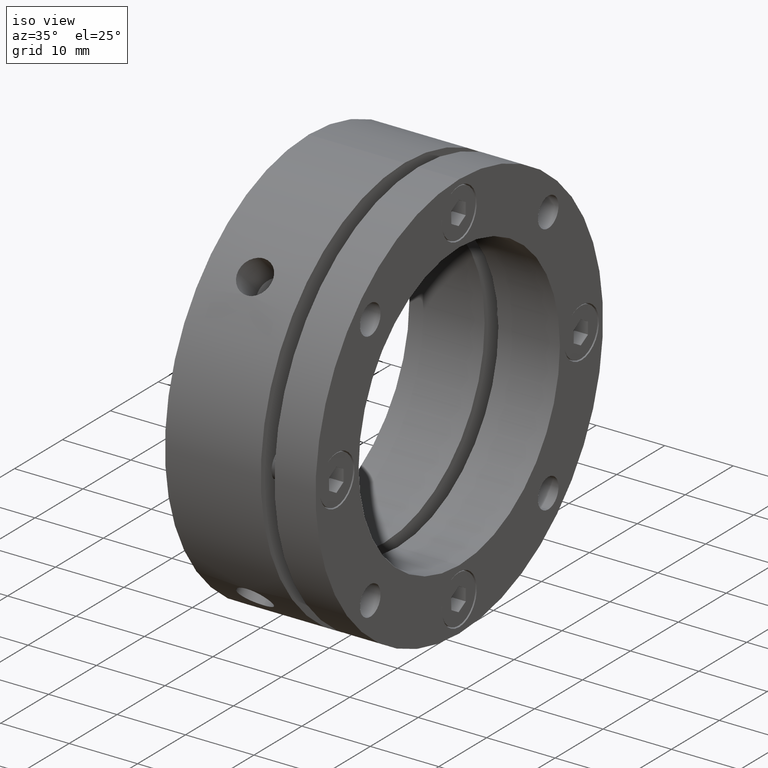
[diagram: clean part render]
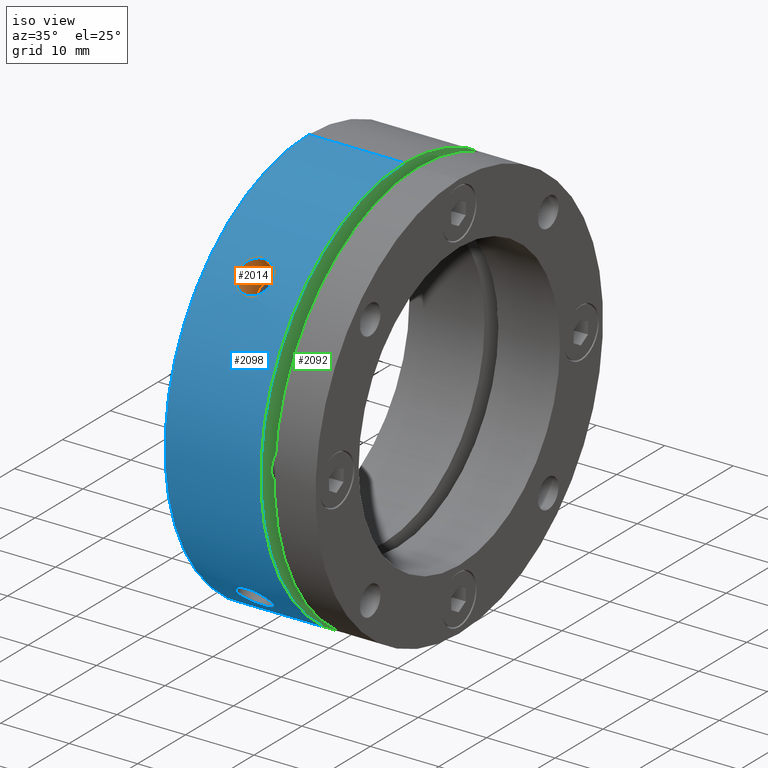
[diagram: same view with three faces highlighted in distinct colors, each labeled with its STEP entity id]
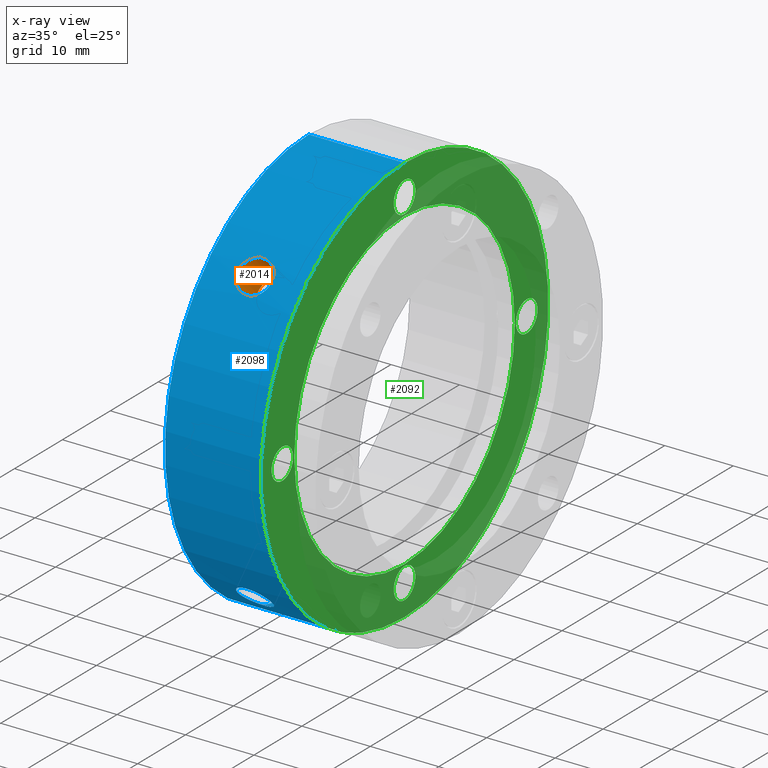
[diagram: x-ray of the same camera — body ghosted, the three highlighted faces saturated]
A machine part, iso view with three faces highlighted in distinct colors.
The next image is the same camera in x-ray (body ghosted, the three faces saturated) — at least one of them is partly hidden behind the body in this view.
Their STEP definitions:

[orange] entity #2014 — the highlighted cylindrical surface (edge-blend (fillet) strip) has radius 2.5 mm, axis along (0, -0.7071, 0.7071).
#169 = ORIENTED_EDGE ( 'NONE', *, *, #1914, .F. ) ;
#170 = ORIENTED_EDGE ( 'NONE', *, *, #1909, .F. ) ;
#171 = ORIENTED_EDGE ( 'NONE', *, *, #1887, .T. ) ;
#172 = ORIENTED_EDGE ( 'NONE', *, *, #1912, .F. ) ;
#254 = VECTOR ( 'NONE', #2864, 1000.000000000000000 ) ;
#274 = LINE ( 'NONE', #2858, #254 ) ;
#317 = AXIS2_PLACEMENT_3D ( 'NONE', #3215, #3213, #3212 ) ;
#333 = CYLINDRICAL_SURFACE ( 'NONE', #317, 2.499999999999998700 ) ;
#336 = FACE_OUTER_BOUND ( 'NONE', #1158, .T. ) ;
#1158 = EDGE_LOOP ( 'NONE', ( #172, #171, #170, #169 ) ) ;
#1358 = B_SPLINE_CURVE_WITH_KNOTS ( 'NONE', 3,
 ( #2948, #2944, #2950, #2951, #2952, #2953, #2954, #2955, #2956, #2957, #2958, #2959, #2960, #2961, #2962, #2963, #2964, #2965, #2966, #2967, #2968, #2969, #2970, #2971, #2972, #2973, #2974, #2975, #2976, #2977, #2978, #2979, #2980, #2981 ),
 .UNSPECIFIED., .F., .F.,
 ( 4, 2, 2, 2, 2, 2, 2, 2, 2, 2, 2, 2, 2, 2, 2, 2, 4 ),
 ( 0.01172850630660228500, 0.01221712147181779800, 0.01270573663703331200, 0.01319435180224882600, 0.01368296696746433900, 0.01417158213267985200, 0.01466019729789536600, 0.01514881246311088100, 0.01563742762832639300, 0.01612604279354190600, 0.01661465795875741900, 0.01710327312397293500, 0.01759188828918844700, 0.01808050345440396000, 0.01856911861961947600, 0.01905773378483498900, 0.01954634895005050200 ),
 .UNSPECIFIED. ) ;
#1381 = VERTEX_POINT ( 'NONE', #2714 ) ;
#1384 = VERTEX_POINT ( 'NONE', #2720 ) ;
#1435 = VERTEX_POINT ( 'NONE', #2728 ) ;
#1498 = VERTEX_POINT ( 'NONE', #2725 ) ;
#1887 = EDGE_CURVE ( 'NONE', #1498, #1381, #274, .T. ) ;
#1909 = EDGE_CURVE ( 'NONE', #1384, #1381, #1358, .T. ) ;
#1912 = EDGE_CURVE ( 'NONE', #1498, #1435, #3553, .T. ) ;
#1914 = EDGE_CURVE ( 'NONE', #1435, #1384, #3532, .T. ) ;
#2014 = ADVANCED_FACE ( 'NONE', ( #336 ), #333, .F. ) ;
#2714 = CARTESIAN_POINT ( 'NONE',  ( 6.999999999999992900, -19.37165120364333500, 22.90718510957606900 ) ) ;
#2720 = CARTESIAN_POINT ( 'NONE',  ( 6.999999999999992900, -22.90718510957606900, 19.37165120364333100 ) ) ;
#2725 = CARTESIAN_POINT ( 'NONE',  ( 6.999999999999992900, -15.20279579787412600, 18.73832969908015400 ) ) ;
#2728 = CARTESIAN_POINT ( 'NONE',  ( 6.999999999999992900, -18.73832969908015800, 15.20279579787412800 ) ) ;
#2858 = CARTESIAN_POINT ( 'NONE',  ( 6.999999999999992900, -17.32411613907041600, 20.85965004500314600 ) ) ;
#2864 = DIRECTION ( 'NONE',  ( 0.0000000000000000000, -0.7071067811865470200, 0.7071067811865480200 ) ) ;
#2944 = CARTESIAN_POINT ( 'NONE',  ( 6.836894700547596800, -22.90718510957606900, 19.37165120364333500 ) ) ;
#2948 = CARTESIAN_POINT ( 'NONE',  ( 6.999999999999992900, -22.90718510957606900, 19.37165120364333100 ) ) ;
#2950 = CARTESIAN_POINT ( 'NONE',  ( 6.671221257707829400, -22.89661360415437500, 19.38417176302243300 ) ) ;
#2951 = CARTESIAN_POINT ( 'NONE',  ( 6.350617425688484200, -22.85509794150021200, 19.43310390958521000 ) ) ;
#2952 = CARTESIAN_POINT ( 'NONE',  ( 6.194783716693788900, -22.82438068432816500, 19.46924749727402900 ) ) ;
#2953 = CARTESIAN_POINT ( 'NONE',  ( 5.892100343668774400, -22.74258783071788100, 19.56472975778931600 ) ) ;
#2954 = CARTESIAN_POINT ( 'NONE',  ( 5.745846001376010600, -22.69135547735402300, 19.62423545354951300 ) ) ;
#2955 = CARTESIAN_POINT ( 'NONE',  ( 5.475114872303451300, -22.57225115279433000, 19.76111607250889800 ) ) ;
#2956 = CARTESIAN_POINT ( 'NONE',  ( 5.348905772578898900, -22.50397472037905200, 19.83897140071788500 ) ) ;
#2957 = CARTESIAN_POINT ( 'NONE',  ( 5.115526374395370700, -22.34868855734542600, 20.01373988590686200 ) ) ;
#2958 = CARTESIAN_POINT ( 'NONE',  ( 5.012130362257663800, -22.26416831458684000, 20.10783844428337000 ) ) ;
#2959 = CARTESIAN_POINT ( 'NONE',  ( 4.831169746185584500, -22.08163587195340600, 20.30811943189505800 ) ) ;
#2960 = CARTESIAN_POINT ( 'NONE',  ( 4.752918425768972300, -21.98241886911594600, 20.41558739538757900 ) ) ;
#2961 = CARTESIAN_POINT ( 'NONE',  ( 4.627517836316944700, -21.77512464431892900, 20.63654270366883700 ) ) ;
#2962 = CARTESIAN_POINT ( 'NONE',  ( 4.580260200849642700, -21.66763970699688700, 20.74943530156133800 ) ) ;
#2963 = CARTESIAN_POINT ( 'NONE',  ( 4.516342189234553200, -21.44475500621785700, 20.97970825653213100 ) ) ;
#2964 = CARTESIAN_POINT ( 'NONE',  ( 4.499883834946282400, -21.32877622223017900, 21.09764433914214300 ) ) ;
#2965 = CARTESIAN_POINT ( 'NONE',  ( 4.500117414499269100, -21.09513112999237800, 21.33126190377245400 ) ) ;
#2966 = CARTESIAN_POINT ( 'NONE',  ( 4.516446248430277400, -20.97930605625763400, 21.44514514449110700 ) ) ;
#2967 = CARTESIAN_POINT ( 'NONE',  ( 4.580201500392894900, -20.74967411051719800, 21.66740771707014100 ) ) ;
#2968 = CARTESIAN_POINT ( 'NONE',  ( 4.628409080404230400, -20.63464658679869100, 21.77692064744342900 ) ) ;
#2969 = CARTESIAN_POINT ( 'NONE',  ( 4.754095537332377200, -20.41384449055703200, 21.98403661210755500 ) ) ;
#2970 = CARTESIAN_POINT ( 'NONE',  ( 4.830971930617552700, -20.30832116564056000, 22.08145305637847100 ) ) ;
#2971 = CARTESIAN_POINT ( 'NONE',  ( 5.012555105402102900, -20.10738557641113300, 22.26458000792703000 ) ) ;
#2972 = CARTESIAN_POINT ( 'NONE',  ( 5.118171207639497000, -20.01163789383247100, 22.35056281768358100 ) ) ;
#2973 = CARTESIAN_POINT ( 'NONE',  ( 5.348833923572706300, -19.83914795000356100, 22.50381119008424900 ) ) ;
#2974 = CARTESIAN_POINT ( 'NONE',  ( 5.474697529445538900, -19.76126421475497400, 22.57212466538898000 ) ) ;
#2975 = CARTESIAN_POINT ( 'NONE',  ( 5.748053014275139800, -19.62318287399133600, 22.69226892950791500 ) ) ;
#2976 = CARTESIAN_POINT ( 'NONE',  ( 5.893468293072757500, -19.56427291519543800, 22.74297967647199700 ) ) ;
#2977 = CARTESIAN_POINT ( 'NONE',  ( 6.194297869247016300, -19.46942615285583500, 22.82422714010622000 ) ) ;
#2978 = CARTESIAN_POINT ( 'NONE',  ( 6.351938250832660100, -19.43277923286016000, 22.85537406943897700 ) ) ;
#2979 = CARTESIAN_POINT ( 'NONE',  ( 6.674652181047235000, -19.38377303029575300, 22.89695123104916200 ) ) ;
#2980 = CARTESIAN_POINT ( 'NONE',  ( 6.836894461924723400, -19.37165120364333100, 22.90718510957607300 ) ) ;
#2981 = CARTESIAN_POINT ( 'NONE',  ( 6.999999999999992900, -19.37165120364333500, 22.90718510957606900 ) ) ;
#2990 = CARTESIAN_POINT ( 'NONE',  ( 6.999999999999992900, -16.97056274847714300, 16.97056274847713900 ) ) ;
#2991 = DIRECTION ( 'NONE',  ( 0.0000000000000000000, -0.7071067811865470200, 0.7071067811865480200 ) ) ;
#2992 = DIRECTION ( 'NONE',  ( 0.0000000000000000000, -0.7071067811865477900, -0.7071067811865471300 ) ) ;
#2993 = CARTESIAN_POINT ( 'NONE',  ( 6.999999999999992900, -20.85965004500315300, 17.32411613907041600 ) ) ;
#2995 = DIRECTION ( 'NONE',  ( 0.0000000000000000000, -0.7071067811865470200, 0.7071067811865480200 ) ) ;
#3212 = DIRECTION ( 'NONE',  ( 0.0000000000000000000, -0.7071067811865482400, -0.7071067811865468000 ) ) ;
#3213 = DIRECTION ( 'NONE',  ( 0.0000000000000000000, -0.7071067811865470200, 0.7071067811865480200 ) ) ;
#3215 = CARTESIAN_POINT ( 'NONE',  ( 6.999999999999992900, -19.09188309203678500, 19.09188309203678100 ) ) ;
#3416 = AXIS2_PLACEMENT_3D ( 'NONE', #2990, #2991, #2992 ) ;
#3529 = VECTOR ( 'NONE', #2995, 1000.000000000000000 ) ;
#3532 = LINE ( 'NONE', #2993, #3529 ) ;
#3553 = CIRCLE ( 'NONE', #3416, 2.500000000000000000 ) ;

[blue] entity #2098 — the highlighted cylindrical surface (partial cylindrical patch) has radius 30 mm, axis along (1, 0, 0).
#437 = DIRECTION ( 'NONE',  ( 0.0000000000000000000, 0.0000000000000000000, -1.000000000000000000 ) ) ;
#438 = CARTESIAN_POINT ( 'NONE',  ( 10.99999999999999300, 0.0000000000000000000, 0.0000000000000000000 ) ) ;
#439 = DIRECTION ( 'NONE',  ( 1.000000000000000000, 0.0000000000000000000, 0.0000000000000000000 ) ) ;
#530 = CARTESIAN_POINT ( 'NONE',  ( 6.999999999999992900, -19.37165120364333500, 22.90718510957606900 ) ) ;
#534 = CARTESIAN_POINT ( 'NONE',  ( 6.999999999999992900, -22.90718510957607300, -19.37165120364333100 ) ) ;
#535 = CARTESIAN_POINT ( 'NONE',  ( 7.163105538181801200, -22.90718510957607300, -19.37165120364333900 ) ) ;
#536 = CARTESIAN_POINT ( 'NONE',  ( 14.00000000000000000, 0.0000000000000000000, 0.0000000000000000000 ) ) ;
#537 = DIRECTION ( 'NONE',  ( -1.000000000000000000, -0.0000000000000000000, -0.0000000000000000000 ) ) ;
#538 = DIRECTION ( 'NONE',  ( 0.0000000000000000000, 0.0000000000000000000, -1.000000000000000000 ) ) ;
#539 = CARTESIAN_POINT ( 'NONE',  ( 7.163105538181801200, -19.37165120364333500, 22.90718510957607300 ) ) ;
#540 = CARTESIAN_POINT ( 'NONE',  ( 7.328779224750092200, -22.89661357285001500, -19.38417180015198200 ) ) ;
#541 = CARTESIAN_POINT ( 'NONE',  ( 7.649383499610916500, -22.85509779051097100, -19.43310408731471700 ) ) ;
#542 = CARTESIAN_POINT ( 'NONE',  ( 7.805217417415984300, -22.82438044525099500, -19.46924777814290800 ) ) ;
#543 = CARTESIAN_POINT ( 'NONE',  ( 8.107901180360109100, -22.74258735149684100, -19.56473031543789500 ) ) ;
#544 = CARTESIAN_POINT ( 'NONE',  ( 8.254155664859011300, -22.69135485746315700, -19.62423617146452400 ) ) ;
#545 = CARTESIAN_POINT ( 'NONE',  ( 8.524887027766089500, -22.57225020373851600, -19.76111715770542400 ) ) ;
#546 = CARTESIAN_POINT ( 'NONE',  ( 8.651096218718093300, -22.50397358111146000, -19.83897269496314300 ) ) ;
#547 = CARTESIAN_POINT ( 'NONE',  ( 8.884475733340572400, -22.34868696919205500, -20.01374166126667800 ) ) ;
#548 = CARTESIAN_POINT ( 'NONE',  ( 8.987871681798553800, -22.26416654470176200, -20.10784040620759000 ) ) ;
#549 = CARTESIAN_POINT ( 'NONE',  ( 9.168832182704775800, -22.08163363437640200, -20.30812186709813000 ) ) ;
#550 = CARTESIAN_POINT ( 'NONE',  ( 9.247083408198186300, -21.98241635808737400, -20.41559010135178900 ) ) ;
#551 = CARTESIAN_POINT ( 'NONE',  ( 9.372483633479699700, -21.77512169402642100, -20.63654581893636900 ) ) ;
#552 = CARTESIAN_POINT ( 'NONE',  ( 9.419741051201853600, -21.66763652644372900, -20.74943862536838800 ) ) ;
#553 = CARTESIAN_POINT ( 'NONE',  ( 9.483658523332563200, -21.44475133602965000, -20.97971201055587900 ) ) ;
#554 = CARTESIAN_POINT ( 'NONE',  ( 9.500116543866353100, -21.32877192758936100, -21.09764867842641700 ) ) ;
#555 = CARTESIAN_POINT ( 'NONE',  ( 9.499882198476855800, -21.09512722456828400, -21.33126576358537800 ) ) ;
#556 = CARTESIAN_POINT ( 'NONE',  ( 9.483553047503853900, -20.97930234141864900, -21.44514877648675400 ) ) ;
#557 = CARTESIAN_POINT ( 'NONE',  ( 9.419797245789293800, -20.74967077353989400, -21.66741091058202800 ) ) ;
#558 = CARTESIAN_POINT ( 'NONE',  ( 9.371589422166462000, -20.63464343284202600, -21.77692363346963200 ) ) ;
#559 = CARTESIAN_POINT ( 'NONE',  ( 9.245902651748204800, -20.41384183252238300, -21.98403907782320500 ) ) ;
#560 = CARTESIAN_POINT ( 'NONE',  ( 9.169026150545470000, -20.30831874024471200, -22.08145528509409400 ) ) ;
#561 = CARTESIAN_POINT ( 'NONE',  ( 8.987442830375432100, -20.10738359425552700, -22.26458179612740600 ) ) ;
#562 = CARTESIAN_POINT ( 'NONE',  ( 8.881826724277937400, -20.01163615549786800, -22.35056437251759900 ) ) ;
#563 = CARTESIAN_POINT ( 'NONE',  ( 8.651164096809886000, -19.83914666146511500, -22.50381232446982300 ) ) ;
#564 = CARTESIAN_POINT ( 'NONE',  ( 8.525300567668345800, -19.76126312680644400, -22.57212561688089300 ) ) ;
#565 = CARTESIAN_POINT ( 'NONE',  ( 8.251945290952889400, -19.62318214463960000, -22.69226955924480300 ) ) ;
#566 = CARTESIAN_POINT ( 'NONE',  ( 8.106530202867167700, -19.56427236512423600, -22.74298014917462400 ) ) ;
#567 = CARTESIAN_POINT ( 'NONE',  ( 7.805700995315485000, -19.46942587073627400, -22.82422738027336000 ) ) ;
#568 = CARTESIAN_POINT ( 'NONE',  ( 7.648060807944369300, -19.43277905299464700, -22.85537422223598400 ) ) ;
#569 = CARTESIAN_POINT ( 'NONE',  ( 7.325347344419744100, -19.38377299516970400, -22.89695126065229000 ) ) ;
#570 = CARTESIAN_POINT ( 'NONE',  ( 7.163105299558921500, -19.37165120364333100, -22.90718510957607300 ) ) ;
#571 = CARTESIAN_POINT ( 'NONE',  ( 6.999999999999992900, -19.37165120364333500, -22.90718510957606900 ) ) ;
#572 = CARTESIAN_POINT ( 'NONE',  ( 7.328779224750089600, -19.38417180015198600, 22.89661357285002200 ) ) ;
#573 = CARTESIAN_POINT ( 'NONE',  ( 7.649383499610918200, -19.43310408731472100, 22.85509779051097100 ) ) ;
#574 = CARTESIAN_POINT ( 'NONE',  ( 7.805217417415984300, -19.46924777814291100, 22.82438044525099500 ) ) ;
#575 = CARTESIAN_POINT ( 'NONE',  ( 8.107901180360109100, -19.56473031543789900, 22.74258735149684100 ) ) ;
#576 = CARTESIAN_POINT ( 'NONE',  ( 8.254155664859011300, -19.62423617146452800, 22.69135485746315700 ) ) ;
#577 = CARTESIAN_POINT ( 'NONE',  ( 8.524887027766089500, -19.76111715770542800, 22.57225020373851300 ) ) ;
#578 = CARTESIAN_POINT ( 'NONE',  ( 8.651096218718100400, -19.83897269496314700, 22.50397358111145300 ) ) ;
#579 = CARTESIAN_POINT ( 'NONE',  ( 8.884475733340575900, -20.01374166126668500, 22.34868696919204500 ) ) ;
#580 = CARTESIAN_POINT ( 'NONE',  ( 8.987871681798557300, -20.10784040620759000, 22.26416654470176600 ) ) ;
#581 = CARTESIAN_POINT ( 'NONE',  ( 9.168832182704781200, -20.30812186709813400, 22.08163363437639100 ) ) ;
#582 = CARTESIAN_POINT ( 'NONE',  ( 9.247083408198188100, -20.41559010135179600, 21.98241635808736300 ) ) ;
#583 = CARTESIAN_POINT ( 'NONE',  ( 9.372483633479701500, -20.63654581893636900, 21.77512169402642100 ) ) ;
#584 = CARTESIAN_POINT ( 'NONE',  ( 9.419741051201855300, -20.74943862536839100, 21.66763652644371900 ) ) ;
#585 = CARTESIAN_POINT ( 'NONE',  ( 9.483658523332559700, -20.97971201055587900, 21.44475133602964300 ) ) ;
#586 = CARTESIAN_POINT ( 'NONE',  ( 9.500116543866353100, -21.09764867842642400, 21.32877192758935400 ) ) ;
#587 = CARTESIAN_POINT ( 'NONE',  ( 9.499882198476855800, -21.33126576358539200, 21.09512722456827300 ) ) ;
#588 = CARTESIAN_POINT ( 'NONE',  ( 9.483553047503852100, -21.44514877648675700, 20.97930234141863800 ) ) ;
#589 = CARTESIAN_POINT ( 'NONE',  ( 9.419797245789292000, -21.66741091058203100, 20.74967077353988600 ) ) ;
#590 = CARTESIAN_POINT ( 'NONE',  ( 9.371589422166460200, -21.77692363346963600, 20.63464343284201500 ) ) ;
#591 = CARTESIAN_POINT ( 'NONE',  ( 9.245902651748203000, -21.98403907782321600, 20.41384183252237600 ) ) ;
#592 = CARTESIAN_POINT ( 'NONE',  ( 9.169026150545471800, -22.08145528509410100, 20.30831874024470500 ) ) ;
#593 = CARTESIAN_POINT ( 'NONE',  ( 8.987442830375428600, -22.26458179612742000, 20.10738359425552700 ) ) ;
#594 = CARTESIAN_POINT ( 'NONE',  ( 8.881826724277932100, -22.35056437251760300, 20.01163615549786100 ) ) ;
#595 = CARTESIAN_POINT ( 'NONE',  ( 8.651164096809886000, -22.50381232446983000, 19.83914666146510800 ) ) ;
#596 = CARTESIAN_POINT ( 'NONE',  ( 8.525300567668344000, -22.57212561688089600, 19.76126312680644800 ) ) ;
#597 = CARTESIAN_POINT ( 'NONE',  ( 8.251945290952884100, -22.69226955924480600, 19.62318214463960000 ) ) ;
#598 = CARTESIAN_POINT ( 'NONE',  ( 8.106530202867166000, -22.74298014917462000, 19.56427236512423600 ) ) ;
#599 = CARTESIAN_POINT ( 'NONE',  ( 7.805700995315480600, -22.82422738027336400, 19.46942587073627000 ) ) ;
#600 = CARTESIAN_POINT ( 'NONE',  ( 7.648060807944367500, -22.85537422223598400, 19.43277905299464300 ) ) ;
#601 = CARTESIAN_POINT ( 'NONE',  ( 7.325347344419744100, -22.89695126065229000, 19.38377299516969600 ) ) ;
#602 = CARTESIAN_POINT ( 'NONE',  ( 7.163105299558921500, -22.90718510957607300, 19.37165120364333500 ) ) ;
#603 = CARTESIAN_POINT ( 'NONE',  ( 6.999999999999992900, -22.90718510957606900, 19.37165120364333100 ) ) ;
#607 = CARTESIAN_POINT ( 'NONE',  ( -8.673617379884035500E-015, 0.0000000000000000000, 0.0000000000000000000 ) ) ;
#608 = DIRECTION ( 'NONE',  ( 1.000000000000000000, 0.0000000000000000000, 0.0000000000000000000 ) ) ;
#609 = DIRECTION ( 'NONE',  ( 0.0000000000000000000, 0.0000000000000000000, -1.000000000000000000 ) ) ;
#1160 = VERTEX_POINT ( 'NONE', #2553 ) ;
#1311 = AXIS2_PLACEMENT_3D ( 'NONE', #438, #439, #437 ) ;
#1357 = B_SPLINE_CURVE_WITH_KNOTS ( 'NONE', 3,
 ( #530, #539, #572, #573, #574, #575, #576, #577, #578, #579, #580, #581, #582, #583, #584, #585, #586, #587, #588, #589, #590, #591, #592, #593, #594, #595, #596, #597, #598, #599, #600, #601, #602, #603 ),
 .UNSPECIFIED., .F., .F.,
 ( 4, 2, 2, 2, 2, 2, 2, 2, 2, 2, 2, 2, 2, 2, 2, 2, 4 ),
 ( 0.003910663658047631100, 0.004399278823582297400, 0.004887893989116963600, 0.005376509154651629800, 0.005865124320186295200, 0.006353739485720962300, 0.006842354651255627700, 0.007330969816790293900, 0.007819584982324960200, 0.008308200147859625500, 0.008796815313394292700, 0.009285430478928959800, 0.009774045644463623400, 0.01026266080999829100, 0.01075127597553295800, 0.01123989114106762100, 0.01172850630660228500 ),
 .UNSPECIFIED. ) ;
#1358 = B_SPLINE_CURVE_WITH_KNOTS ( 'NONE', 3,
 ( #2948, #2944, #2950, #2951, #2952, #2953, #2954, #2955, #2956, #2957, #2958, #2959, #2960, #2961, #2962, #2963, #2964, #2965, #2966, #2967, #2968, #2969, #2970, #2971, #2972, #2973, #2974, #2975, #2976, #2977, #2978, #2979, #2980, #2981 ),
 .UNSPECIFIED., .F., .F.,
 ( 4, 2, 2, 2, 2, 2, 2, 2, 2, 2, 2, 2, 2, 2, 2, 2, 4 ),
 ( 0.01172850630660228500, 0.01221712147181779800, 0.01270573663703331200, 0.01319435180224882600, 0.01368296696746433900, 0.01417158213267985200, 0.01466019729789536600, 0.01514881246311088100, 0.01563742762832639300, 0.01612604279354190600, 0.01661465795875741900, 0.01710327312397293500, 0.01759188828918844700, 0.01808050345440396000, 0.01856911861961947600, 0.01905773378483498900, 0.01954634895005050200 ),
 .UNSPECIFIED. ) ;
#1363 = B_SPLINE_CURVE_WITH_KNOTS ( 'NONE', 3,
 ( #2884, #2885, #2890, #2891, #2892, #2893, #2894, #2895, #2896, #2897, #2898, #2899, #2900, #2901, #2902, #2903, #2904, #2905, #2906, #2907, #2908, #2909, #2910, #2911, #2912, #2913, #2914, #2915, #2916, #2917, #2918, #2919, #2920, #2921 ),
 .UNSPECIFIED., .F., .F.,
 ( 4, 2, 2, 2, 2, 2, 2, 2, 2, 2, 2, 2, 2, 2, 2, 2, 4 ),
 ( 0.01172850630660226600, 0.01221712147181777800, 0.01270573663703329100, 0.01319435180224880400, 0.01368296696746431700, 0.01417158213267982900, 0.01466019729789534000, 0.01514881246311085300, 0.01563742762832636600, 0.01612604279354187800, 0.01661465795875739100, 0.01710327312397290400, 0.01759188828918841600, 0.01808050345440392900, 0.01856911861961944200, 0.01905773378483495400, 0.01954634895005046700 ),
 .UNSPECIFIED. ) ;
#1364 = B_SPLINE_CURVE_WITH_KNOTS ( 'NONE', 3,
 ( #534, #535, #540, #541, #542, #543, #544, #545, #546, #547, #548, #549, #550, #551, #552, #553, #554, #555, #556, #557, #558, #559, #560, #561, #562, #563, #564, #565, #566, #567, #568, #569, #570, #571 ),
 .UNSPECIFIED., .F., .F.,
 ( 4, 2, 2, 2, 2, 2, 2, 2, 2, 2, 2, 2, 2, 2, 2, 2, 4 ),
 ( 0.003910663658047629400, 0.004399278823582294800, 0.004887893989116959300, 0.005376509154651624600, 0.005865124320186290000, 0.006353739485720955400, 0.006842354651255619000, 0.007330969816790284400, 0.007819584982324949800, 0.008308200147859615100, 0.008796815313394280500, 0.009285430478928945900, 0.009774045644463609500, 0.01026266080999827500, 0.01075127597553294000, 0.01123989114106760400, 0.01172850630660226400 ),
 .UNSPECIFIED. ) ;
#1365 = VERTEX_POINT ( 'NONE', #2716 ) ;
#1381 = VERTEX_POINT ( 'NONE', #2714 ) ;
#1384 = VERTEX_POINT ( 'NONE', #2720 ) ;
#1406 = VERTEX_POINT ( 'NONE', #2727 ) ;
#1411 = VERTEX_POINT ( 'NONE', #2718 ) ;
#1456 = VERTEX_POINT ( 'NONE', #2735 ) ;
#1460 = VERTEX_POINT ( 'NONE', #2734 ) ;
#1526 = ORIENTED_EDGE ( 'NONE', *, *, #1893, .T. ) ;
#1529 = ORIENTED_EDGE ( 'NONE', *, *, #2590, .T. ) ;
#1530 = ORIENTED_EDGE ( 'NONE', *, *, #1903, .F. ) ;
#1537 = ORIENTED_EDGE ( 'NONE', *, *, #2599, .T. ) ;
#1585 = ORIENTED_EDGE ( 'NONE', *, *, #1909, .T. ) ;
#1586 = ORIENTED_EDGE ( 'NONE', *, *, #2595, .T. ) ;
#1588 = ORIENTED_EDGE ( 'NONE', *, *, #1897, .T. ) ;
#1615 = ORIENTED_EDGE ( 'NONE', *, *, #2592, .T. ) ;
#1893 = EDGE_CURVE ( 'NONE', #1460, #1406, #3540, .T. ) ;
#1897 = EDGE_CURVE ( 'NONE', #1365, #1160, #1363, .T. ) ;
#1903 = EDGE_CURVE ( 'NONE', #1456, #1411, #3549, .T. ) ;
#1909 = EDGE_CURVE ( 'NONE', #1384, #1381, #1358, .T. ) ;
#1985 = EDGE_LOOP ( 'NONE', ( #1588, #1615 ) ) ;
#1986 = EDGE_LOOP ( 'NONE', ( #1585, #1586 ) ) ;
#1987 = EDGE_LOOP ( 'NONE', ( #1530, #1537, #1526, #1529 ) ) ;
#2098 = ADVANCED_FACE ( 'NONE', ( #2273, #2277, #2274 ), #2280, .T. ) ;
#2273 = FACE_OUTER_BOUND ( 'NONE', #1987, .T. ) ;
#2274 = FACE_BOUND ( 'NONE', #1985, .T. ) ;
#2277 = FACE_BOUND ( 'NONE', #1986, .T. ) ;
#2280 = CYLINDRICAL_SURFACE ( 'NONE', #1311, 30.00000000000000000 ) ;
#2324 = CIRCLE ( 'NONE', #2647, 30.00000000000000000 ) ;
#2326 = CIRCLE ( 'NONE', #2652, 30.00000000000000000 ) ;
#2553 = CARTESIAN_POINT ( 'NONE',  ( 6.999999999999992900, -22.90718510957607300, -19.37165120364333100 ) ) ;
#2590 = EDGE_CURVE ( 'NONE', #1406, #1411, #2324, .T. ) ;
#2592 = EDGE_CURVE ( 'NONE', #1160, #1365, #1364, .T. ) ;
#2595 = EDGE_CURVE ( 'NONE', #1381, #1384, #1357, .T. ) ;
#2599 = EDGE_CURVE ( 'NONE', #1456, #1460, #2326, .T. ) ;
#2647 = AXIS2_PLACEMENT_3D ( 'NONE', #536, #537, #538 ) ;
#2652 = AXIS2_PLACEMENT_3D ( 'NONE', #607, #608, #609 ) ;
#2714 = CARTESIAN_POINT ( 'NONE',  ( 6.999999999999992900, -19.37165120364333500, 22.90718510957606900 ) ) ;
#2716 = CARTESIAN_POINT ( 'NONE',  ( 6.999999999999992900, -19.37165120364333500, -22.90718510957606900 ) ) ;
#2718 = CARTESIAN_POINT ( 'NONE',  ( 14.00000000000000000, 3.673940397442059200E-015, 30.00000000000000000 ) ) ;
#2720 = CARTESIAN_POINT ( 'NONE',  ( 6.999999999999992900, -22.90718510957606900, 19.37165120364333100 ) ) ;
#2727 = CARTESIAN_POINT ( 'NONE',  ( 14.00000000000000000, 0.0000000000000000000, -30.00000000000000000 ) ) ;
#2734 = CARTESIAN_POINT ( 'NONE',  ( -8.673617379884035500E-015, 0.0000000000000000000, -30.00000000000000000 ) ) ;
#2735 = CARTESIAN_POINT ( 'NONE',  ( -8.673617379884035500E-015, 3.673940397442059200E-015, 30.00000000000000000 ) ) ;
#2875 = DIRECTION ( 'NONE',  ( 1.000000000000000000, 0.0000000000000000000, 0.0000000000000000000 ) ) ;
#2878 = CARTESIAN_POINT ( 'NONE',  ( 10.99999999999999300, 0.0000000000000000000, -30.00000000000000000 ) ) ;
#2884 = CARTESIAN_POINT ( 'NONE',  ( 6.999999999999992900, -19.37165120364333500, -22.90718510957606900 ) ) ;
#2885 = CARTESIAN_POINT ( 'NONE',  ( 6.836894700547597700, -19.37165120364333500, -22.90718510957606900 ) ) ;
#2886 = CARTESIAN_POINT ( 'NONE',  ( 10.99999999999999300, 3.673940397442059200E-015, 30.00000000000000000 ) ) ;
#2890 = CARTESIAN_POINT ( 'NONE',  ( 6.671221257707832900, -19.38417176302243300, -22.89661360415437500 ) ) ;
#2891 = CARTESIAN_POINT ( 'NONE',  ( 6.350617425688484200, -19.43310390958521000, -22.85509794150021200 ) ) ;
#2892 = CARTESIAN_POINT ( 'NONE',  ( 6.194783716693791600, -19.46924749727403300, -22.82438068432816500 ) ) ;
#2893 = CARTESIAN_POINT ( 'NONE',  ( 5.892100343668775300, -19.56472975778930800, -22.74258783071788100 ) ) ;
#2894 = CARTESIAN_POINT ( 'NONE',  ( 5.745846001376012400, -19.62423545354951700, -22.69135547735401600 ) ) ;
#2895 = CARTESIAN_POINT ( 'NONE',  ( 5.475114872303454000, -19.76111607250889800, -22.57225115279431900 ) ) ;
#2896 = CARTESIAN_POINT ( 'NONE',  ( 5.348905772578897100, -19.83897140071788500, -22.50397472037905200 ) ) ;
#2897 = CARTESIAN_POINT ( 'NONE',  ( 5.115526374395369800, -20.01373988590686200, -22.34868855734542600 ) ) ;
#2898 = CARTESIAN_POINT ( 'NONE',  ( 5.012130362257657600, -20.10783844428337700, -22.26416831458683300 ) ) ;
#2899 = CARTESIAN_POINT ( 'NONE',  ( 4.831169746185578300, -20.30811943189506500, -22.08163587195340200 ) ) ;
#2900 = CARTESIAN_POINT ( 'NONE',  ( 4.752918425768966900, -20.41558739538758600, -21.98241886911593900 ) ) ;
#2901 = CARTESIAN_POINT ( 'NONE',  ( 4.627517836316942900, -20.63654270366884400, -21.77512464431892200 ) ) ;
#2902 = CARTESIAN_POINT ( 'NONE',  ( 4.580260200849640900, -20.74943530156134500, -21.66763970699688000 ) ) ;
#2903 = CARTESIAN_POINT ( 'NONE',  ( 4.516342189234552300, -20.97970825653213800, -21.44475500621784600 ) ) ;
#2904 = CARTESIAN_POINT ( 'NONE',  ( 4.499883834946281500, -21.09764433914213900, -21.32877622223017200 ) ) ;
#2905 = CARTESIAN_POINT ( 'NONE',  ( 4.500117414499266400, -21.33126190377245400, -21.09513112999236400 ) ) ;
#2906 = CARTESIAN_POINT ( 'NONE',  ( 4.516446248430278300, -21.44514514449110700, -20.97930605625762700 ) ) ;
#2907 = CARTESIAN_POINT ( 'NONE',  ( 4.580201500392898400, -21.66740771707015200, -20.74967411051718400 ) ) ;
#2908 = CARTESIAN_POINT ( 'NONE',  ( 4.628409080404233000, -21.77692064744344000, -20.63464658679868800 ) ) ;
#2909 = CARTESIAN_POINT ( 'NONE',  ( 4.754095537332381700, -21.98403661210757300, -20.41384449055702200 ) ) ;
#2910 = CARTESIAN_POINT ( 'NONE',  ( 4.830971930617556300, -22.08145305637848200, -20.30832116564056000 ) ) ;
#2911 = CARTESIAN_POINT ( 'NONE',  ( 5.012555105402106500, -22.26458000792704100, -20.10738557641112900 ) ) ;
#2912 = CARTESIAN_POINT ( 'NONE',  ( 5.118171207639498700, -22.35056281768358800, -20.01163789383246800 ) ) ;
#2913 = CARTESIAN_POINT ( 'NONE',  ( 5.348833923572708000, -22.50381119008424900, -19.83914795000355400 ) ) ;
#2914 = CARTESIAN_POINT ( 'NONE',  ( 5.474697529445543300, -22.57212466538898400, -19.76126421475496600 ) ) ;
#2915 = CARTESIAN_POINT ( 'NONE',  ( 5.748053014275142500, -22.69226892950791800, -19.62318287399132900 ) ) ;
#2916 = CARTESIAN_POINT ( 'NONE',  ( 5.893468293072759300, -22.74297967647200000, -19.56427291519543500 ) ) ;
#2917 = CARTESIAN_POINT ( 'NONE',  ( 6.194297869247016300, -22.82422714010622000, -19.46942615285583900 ) ) ;
#2918 = CARTESIAN_POINT ( 'NONE',  ( 6.351938250832660100, -22.85537406943896600, -19.43277923286016000 ) ) ;
#2919 = CARTESIAN_POINT ( 'NONE',  ( 6.674652181047235000, -22.89695123104916200, -19.38377303029575000 ) ) ;
#2920 = CARTESIAN_POINT ( 'NONE',  ( 6.836894461924723400, -22.90718510957607300, -19.37165120364333500 ) ) ;
#2921 = CARTESIAN_POINT ( 'NONE',  ( 6.999999999999992900, -22.90718510957607300, -19.37165120364333100 ) ) ;
#2935 = DIRECTION ( 'NONE',  ( 1.000000000000000000, 0.0000000000000000000, 0.0000000000000000000 ) ) ;
#2944 = CARTESIAN_POINT ( 'NONE',  ( 6.836894700547596800, -22.90718510957606900, 19.37165120364333500 ) ) ;
#2948 = CARTESIAN_POINT ( 'NONE',  ( 6.999999999999992900, -22.90718510957606900, 19.37165120364333100 ) ) ;
#2950 = CARTESIAN_POINT ( 'NONE',  ( 6.671221257707829400, -22.89661360415437500, 19.38417176302243300 ) ) ;
#2951 = CARTESIAN_POINT ( 'NONE',  ( 6.350617425688484200, -22.85509794150021200, 19.43310390958521000 ) ) ;
#2952 = CARTESIAN_POINT ( 'NONE',  ( 6.194783716693788900, -22.82438068432816500, 19.46924749727402900 ) ) ;
#2953 = CARTESIAN_POINT ( 'NONE',  ( 5.892100343668774400, -22.74258783071788100, 19.56472975778931600 ) ) ;
#2954 = CARTESIAN_POINT ( 'NONE',  ( 5.745846001376010600, -22.69135547735402300, 19.62423545354951300 ) ) ;
#2955 = CARTESIAN_POINT ( 'NONE',  ( 5.475114872303451300, -22.57225115279433000, 19.76111607250889800 ) ) ;
#2956 = CARTESIAN_POINT ( 'NONE',  ( 5.348905772578898900, -22.50397472037905200, 19.83897140071788500 ) ) ;
#2957 = CARTESIAN_POINT ( 'NONE',  ( 5.115526374395370700, -22.34868855734542600, 20.01373988590686200 ) ) ;
#2958 = CARTESIAN_POINT ( 'NONE',  ( 5.012130362257663800, -22.26416831458684000, 20.10783844428337000 ) ) ;
#2959 = CARTESIAN_POINT ( 'NONE',  ( 4.831169746185584500, -22.08163587195340600, 20.30811943189505800 ) ) ;
#2960 = CARTESIAN_POINT ( 'NONE',  ( 4.752918425768972300, -21.98241886911594600, 20.41558739538757900 ) ) ;
#2961 = CARTESIAN_POINT ( 'NONE',  ( 4.627517836316944700, -21.77512464431892900, 20.63654270366883700 ) ) ;
#2962 = CARTESIAN_POINT ( 'NONE',  ( 4.580260200849642700, -21.66763970699688700, 20.74943530156133800 ) ) ;
#2963 = CARTESIAN_POINT ( 'NONE',  ( 4.516342189234553200, -21.44475500621785700, 20.97970825653213100 ) ) ;
#2964 = CARTESIAN_POINT ( 'NONE',  ( 4.499883834946282400, -21.32877622223017900, 21.09764433914214300 ) ) ;
#2965 = CARTESIAN_POINT ( 'NONE',  ( 4.500117414499269100, -21.09513112999237800, 21.33126190377245400 ) ) ;
#2966 = CARTESIAN_POINT ( 'NONE',  ( 4.516446248430277400, -20.97930605625763400, 21.44514514449110700 ) ) ;
#2967 = CARTESIAN_POINT ( 'NONE',  ( 4.580201500392894900, -20.74967411051719800, 21.66740771707014100 ) ) ;
#2968 = CARTESIAN_POINT ( 'NONE',  ( 4.628409080404230400, -20.63464658679869100, 21.77692064744342900 ) ) ;
#2969 = CARTESIAN_POINT ( 'NONE',  ( 4.754095537332377200, -20.41384449055703200, 21.98403661210755500 ) ) ;
#2970 = CARTESIAN_POINT ( 'NONE',  ( 4.830971930617552700, -20.30832116564056000, 22.08145305637847100 ) ) ;
#2971 = CARTESIAN_POINT ( 'NONE',  ( 5.012555105402102900, -20.10738557641113300, 22.26458000792703000 ) ) ;
#2972 = CARTESIAN_POINT ( 'NONE',  ( 5.118171207639497000, -20.01163789383247100, 22.35056281768358100 ) ) ;
#2973 = CARTESIAN_POINT ( 'NONE',  ( 5.348833923572706300, -19.83914795000356100, 22.50381119008424900 ) ) ;
#2974 = CARTESIAN_POINT ( 'NONE',  ( 5.474697529445538900, -19.76126421475497400, 22.57212466538898000 ) ) ;
#2975 = CARTESIAN_POINT ( 'NONE',  ( 5.748053014275139800, -19.62318287399133600, 22.69226892950791500 ) ) ;
#2976 = CARTESIAN_POINT ( 'NONE',  ( 5.893468293072757500, -19.56427291519543800, 22.74297967647199700 ) ) ;
#2977 = CARTESIAN_POINT ( 'NONE',  ( 6.194297869247016300, -19.46942615285583500, 22.82422714010622000 ) ) ;
#2978 = CARTESIAN_POINT ( 'NONE',  ( 6.351938250832660100, -19.43277923286016000, 22.85537406943897700 ) ) ;
#2979 = CARTESIAN_POINT ( 'NONE',  ( 6.674652181047235000, -19.38377303029575300, 22.89695123104916200 ) ) ;
#2980 = CARTESIAN_POINT ( 'NONE',  ( 6.836894461924723400, -19.37165120364333100, 22.90718510957607300 ) ) ;
#2981 = CARTESIAN_POINT ( 'NONE',  ( 6.999999999999992900, -19.37165120364333500, 22.90718510957606900 ) ) ;
#3540 = LINE ( 'NONE', #2878, #3543 ) ;
#3543 = VECTOR ( 'NONE', #2875, 1000.000000000000000 ) ;
#3549 = LINE ( 'NONE', #2886, #3558 ) ;
#3558 = VECTOR ( 'NONE', #2935, 1000.000000000000000 ) ;

[green] entity #2092 — the highlighted planar face has unit normal (-1, 0, 0).
#9 = CIRCLE ( 'NONE', #3413, 2.249999999999998700 ) ;
#268 = CIRCLE ( 'NONE', #3425, 23.00000000000000700 ) ;
#415 = DIRECTION ( 'NONE',  ( -1.000000000000000000, 0.0000000000000000000, 0.0000000000000000000 ) ) ;
#417 = PLANE ( 'NONE',  #1303 ) ;
#419 = CARTESIAN_POINT ( 'NONE',  ( 14.00000000000000000, 26.50000000000000400, 0.0000000000000000000 ) ) ;
#421 = DIRECTION ( 'NONE',  ( 0.0000000000000000000, 0.0000000000000000000, 1.000000000000000000 ) ) ;
#491 = CARTESIAN_POINT ( 'NONE',  ( 14.00000000000000000, 25.50000000000001100, -4.684274000000000000E-015 ) ) ;
#492 = DIRECTION ( 'NONE',  ( 1.000000000000000000, 0.0000000000000000000, 0.0000000000000000000 ) ) ;
#493 = DIRECTION ( 'NONE',  ( 0.0000000000000000000, 0.0000000000000000000, -1.000000000000000000 ) ) ;
#494 = CARTESIAN_POINT ( 'NONE',  ( 14.00000000000000000, -3.122849000000000000E-015, -25.50000000000001100 ) ) ;
#495 = DIRECTION ( 'NONE',  ( 1.000000000000000000, 0.0000000000000000000, 0.0000000000000000000 ) ) ;
#496 = DIRECTION ( 'NONE',  ( 0.0000000000000000000, 0.0000000000000000000, -1.000000000000000000 ) ) ;
#497 = CARTESIAN_POINT ( 'NONE',  ( 14.00000000000000000, -25.50000000000001100, 1.561424999999999900E-015 ) ) ;
#498 = DIRECTION ( 'NONE',  ( 1.000000000000000000, 0.0000000000000000000, 0.0000000000000000000 ) ) ;
#499 = DIRECTION ( 'NONE',  ( 0.0000000000000000000, 0.0000000000000000000, -1.000000000000000000 ) ) ;
#500 = CARTESIAN_POINT ( 'NONE',  ( 14.00000000000000000, 0.0000000000000000000, 25.50000000000001100 ) ) ;
#501 = DIRECTION ( 'NONE',  ( 1.000000000000000000, 0.0000000000000000000, 0.0000000000000000000 ) ) ;
#502 = DIRECTION ( 'NONE',  ( 0.0000000000000000000, 0.0000000000000000000, -1.000000000000000000 ) ) ;
#503 = CARTESIAN_POINT ( 'NONE',  ( 14.00000000000000000, 0.0000000000000000000, 0.0000000000000000000 ) ) ;
#504 = DIRECTION ( 'NONE',  ( 1.000000000000000000, -0.0000000000000000000, -0.0000000000000000000 ) ) ;
#505 = DIRECTION ( 'NONE',  ( 0.0000000000000000000, 0.0000000000000000000, 1.000000000000000000 ) ) ;
#536 = CARTESIAN_POINT ( 'NONE',  ( 14.00000000000000000, 0.0000000000000000000, 0.0000000000000000000 ) ) ;
#537 = DIRECTION ( 'NONE',  ( -1.000000000000000000, -0.0000000000000000000, -0.0000000000000000000 ) ) ;
#538 = DIRECTION ( 'NONE',  ( 0.0000000000000000000, 0.0000000000000000000, -1.000000000000000000 ) ) ;
#675 = CARTESIAN_POINT ( 'NONE',  ( 14.00000000000000000, -25.50000000000001100, 1.561424999999999900E-015 ) ) ;
#676 = DIRECTION ( 'NONE',  ( 1.000000000000000000, 0.0000000000000000000, 0.0000000000000000000 ) ) ;
#677 = DIRECTION ( 'NONE',  ( 0.0000000000000000000, 0.0000000000000000000, -1.000000000000000000 ) ) ;
#724 = CARTESIAN_POINT ( 'NONE',  ( 14.00000000000000000, 25.50000000000001100, -4.684274000000000000E-015 ) ) ;
#725 = DIRECTION ( 'NONE',  ( 1.000000000000000000, 0.0000000000000000000, 0.0000000000000000000 ) ) ;
#726 = DIRECTION ( 'NONE',  ( 0.0000000000000000000, 0.0000000000000000000, -1.000000000000000000 ) ) ;
#735 = CARTESIAN_POINT ( 'NONE',  ( 14.00000000000000000, -3.122849000000000000E-015, -25.50000000000001100 ) ) ;
#736 = DIRECTION ( 'NONE',  ( 1.000000000000000000, 0.0000000000000000000, 0.0000000000000000000 ) ) ;
#737 = DIRECTION ( 'NONE',  ( 0.0000000000000000000, 0.0000000000000000000, -1.000000000000000000 ) ) ;
#1030 = EDGE_LOOP ( 'NONE', ( #1519, #1554 ) ) ;
#1031 = EDGE_LOOP ( 'NONE', ( #1468, #1483 ) ) ;
#1040 = EDGE_LOOP ( 'NONE', ( #1518, #1601 ) ) ;
#1044 = EDGE_LOOP ( 'NONE', ( #1602, #1598 ) ) ;
#1240 = VERTEX_POINT ( 'NONE', #2665 ) ;
#1241 = VERTEX_POINT ( 'NONE', #2667 ) ;
#1244 = VERTEX_POINT ( 'NONE', #2672 ) ;
#1245 = VERTEX_POINT ( 'NONE', #2674 ) ;
#1249 = VERTEX_POINT ( 'NONE', #2681 ) ;
#1250 = VERTEX_POINT ( 'NONE', #2683 ) ;
#1253 = VERTEX_POINT ( 'NONE', #2688 ) ;
#1254 = VERTEX_POINT ( 'NONE', #2690 ) ;
#1257 = VERTEX_POINT ( 'NONE', #2695 ) ;
#1258 = VERTEX_POINT ( 'NONE', #2697 ) ;
#1303 = AXIS2_PLACEMENT_3D ( 'NONE', #419, #415, #421 ) ;
#1320 = AXIS2_PLACEMENT_3D ( 'NONE', #491, #492, #493 ) ;
#1321 = AXIS2_PLACEMENT_3D ( 'NONE', #494, #495, #496 ) ;
#1322 = AXIS2_PLACEMENT_3D ( 'NONE', #497, #498, #499 ) ;
#1323 = AXIS2_PLACEMENT_3D ( 'NONE', #500, #501, #502 ) ;
#1324 = AXIS2_PLACEMENT_3D ( 'NONE', #503, #504, #505 ) ;
#1406 = VERTEX_POINT ( 'NONE', #2727 ) ;
#1411 = VERTEX_POINT ( 'NONE', #2718 ) ;
#1453 = ORIENTED_EDGE ( 'NONE', *, *, #2552, .F. ) ;
#1468 = ORIENTED_EDGE ( 'NONE', *, *, #2554, .F. ) ;
#1483 = ORIENTED_EDGE ( 'NONE', *, *, #3502, .F. ) ;
#1506 = ORIENTED_EDGE ( 'NONE', *, *, #2590, .F. ) ;
#1518 = ORIENTED_EDGE ( 'NONE', *, *, #2561, .F. ) ;
#1519 = ORIENTED_EDGE ( 'NONE', *, *, #2557, .F. ) ;
#1554 = ORIENTED_EDGE ( 'NONE', *, *, #3478, .F. ) ;
#1594 = ORIENTED_EDGE ( 'NONE', *, *, #1907, .F. ) ;
#1598 = ORIENTED_EDGE ( 'NONE', *, *, #1927, .F. ) ;
#1601 = ORIENTED_EDGE ( 'NONE', *, *, #1888, .F. ) ;
#1602 = ORIENTED_EDGE ( 'NONE', *, *, #2559, .F. ) ;
#1604 = ORIENTED_EDGE ( 'NONE', *, *, #3497, .F. ) ;
#1888 = EDGE_CURVE ( 'NONE', #1258, #1257, #268, .T. ) ;
#1907 = EDGE_CURVE ( 'NONE', #1411, #1406, #3555, .T. ) ;
#1927 = EDGE_CURVE ( 'NONE', #1254, #1253, #9, .T. ) ;
#1994 = EDGE_LOOP ( 'NONE', ( #1506, #1594 ) ) ;
#1996 = EDGE_LOOP ( 'NONE', ( #1453, #1604 ) ) ;
#2092 = ADVANCED_FACE ( 'NONE', ( #2249, #2257, #2253, #2251, #2255, #2258 ), #417, .F. ) ;
#2249 = FACE_BOUND ( 'NONE', #1040, .T. ) ;
#2251 = FACE_BOUND ( 'NONE', #1031, .T. ) ;
#2253 = FACE_BOUND ( 'NONE', #1030, .T. ) ;
#2255 = FACE_BOUND ( 'NONE', #1996, .T. ) ;
#2257 = FACE_BOUND ( 'NONE', #1044, .T. ) ;
#2258 = FACE_OUTER_BOUND ( 'NONE', #1994, .T. ) ;
#2309 = CIRCLE ( 'NONE', #1320, 2.250000000000000400 ) ;
#2310 = CIRCLE ( 'NONE', #1321, 2.249999999999998700 ) ;
#2311 = CIRCLE ( 'NONE', #1322, 2.250000000000000400 ) ;
#2312 = CIRCLE ( 'NONE', #1323, 2.249999999999998700 ) ;
#2314 = CIRCLE ( 'NONE', #1324, 23.00000000000000700 ) ;
#2324 = CIRCLE ( 'NONE', #2647, 30.00000000000000000 ) ;
#2356 = CIRCLE ( 'NONE', #2694, 2.250000000000000400 ) ;
#2384 = CIRCLE ( 'NONE', #2717, 2.250000000000000400 ) ;
#2385 = CIRCLE ( 'NONE', #2722, 2.249999999999998700 ) ;
#2552 = EDGE_CURVE ( 'NONE', #1240, #1241, #2309, .T. ) ;
#2554 = EDGE_CURVE ( 'NONE', #1244, #1245, #2310, .T. ) ;
#2557 = EDGE_CURVE ( 'NONE', #1249, #1250, #2311, .T. ) ;
#2559 = EDGE_CURVE ( 'NONE', #1253, #1254, #2312, .T. ) ;
#2561 = EDGE_CURVE ( 'NONE', #1257, #1258, #2314, .T. ) ;
#2590 = EDGE_CURVE ( 'NONE', #1406, #1411, #2324, .T. ) ;
#2647 = AXIS2_PLACEMENT_3D ( 'NONE', #536, #537, #538 ) ;
#2665 = CARTESIAN_POINT ( 'NONE',  ( 14.00000000000000000, 25.50000000000001100, -2.250000000000004900 ) ) ;
#2667 = CARTESIAN_POINT ( 'NONE',  ( 14.00000000000000000, 25.50000000000001100, 2.249999999999995600 ) ) ;
#2672 = CARTESIAN_POINT ( 'NONE',  ( 14.00000000000000000, -3.122849000000000000E-015, -27.75000000000001100 ) ) ;
#2674 = CARTESIAN_POINT ( 'NONE',  ( 14.00000000000000000, -2.847303470191845600E-015, -23.25000000000001400 ) ) ;
#2681 = CARTESIAN_POINT ( 'NONE',  ( 14.00000000000000000, -25.50000000000001100, -2.249999999999998700 ) ) ;
#2683 = CARTESIAN_POINT ( 'NONE',  ( 14.00000000000000000, -25.50000000000001100, 2.250000000000001800 ) ) ;
#2688 = CARTESIAN_POINT ( 'NONE',  ( 14.00000000000000000, 0.0000000000000000000, 23.25000000000001400 ) ) ;
#2690 = CARTESIAN_POINT ( 'NONE',  ( 14.00000000000000000, 2.755455298081546700E-016, 27.75000000000001100 ) ) ;
#2694 = AXIS2_PLACEMENT_3D ( 'NONE', #675, #676, #677 ) ;
#2695 = CARTESIAN_POINT ( 'NONE',  ( 14.00000000000000000, 0.0000000000000000000, 23.00000000000000700 ) ) ;
#2697 = CARTESIAN_POINT ( 'NONE',  ( 14.00000000000000000, 2.816687638038913100E-015, -23.00000000000000700 ) ) ;
#2717 = AXIS2_PLACEMENT_3D ( 'NONE', #724, #725, #726 ) ;
#2718 = CARTESIAN_POINT ( 'NONE',  ( 14.00000000000000000, 3.673940397442059200E-015, 30.00000000000000000 ) ) ;
#2722 = AXIS2_PLACEMENT_3D ( 'NONE', #735, #736, #737 ) ;
#2727 = CARTESIAN_POINT ( 'NONE',  ( 14.00000000000000000, 0.0000000000000000000, -30.00000000000000000 ) ) ;
#2866 = CARTESIAN_POINT ( 'NONE',  ( 14.00000000000000000, 0.0000000000000000000, 0.0000000000000000000 ) ) ;
#2867 = DIRECTION ( 'NONE',  ( 1.000000000000000000, -0.0000000000000000000, -0.0000000000000000000 ) ) ;
#2868 = DIRECTION ( 'NONE',  ( 0.0000000000000000000, 0.0000000000000000000, 1.000000000000000000 ) ) ;
#2945 = CARTESIAN_POINT ( 'NONE',  ( 14.00000000000000000, 0.0000000000000000000, 0.0000000000000000000 ) ) ;
#2946 = DIRECTION ( 'NONE',  ( -1.000000000000000000, -0.0000000000000000000, -0.0000000000000000000 ) ) ;
#2947 = DIRECTION ( 'NONE',  ( 0.0000000000000000000, 0.0000000000000000000, -1.000000000000000000 ) ) ;
#3151 = CARTESIAN_POINT ( 'NONE',  ( 14.00000000000000000, 0.0000000000000000000, 25.50000000000001100 ) ) ;
#3152 = DIRECTION ( 'NONE',  ( 1.000000000000000000, 0.0000000000000000000, 0.0000000000000000000 ) ) ;
#3153 = DIRECTION ( 'NONE',  ( 0.0000000000000000000, 0.0000000000000000000, -1.000000000000000000 ) ) ;
#3413 = AXIS2_PLACEMENT_3D ( 'NONE', #3151, #3152, #3153 ) ;
#3418 = AXIS2_PLACEMENT_3D ( 'NONE', #2945, #2946, #2947 ) ;
#3425 = AXIS2_PLACEMENT_3D ( 'NONE', #2866, #2867, #2868 ) ;
#3478 = EDGE_CURVE ( 'NONE', #1250, #1249, #2356, .T. ) ;
#3497 = EDGE_CURVE ( 'NONE', #1241, #1240, #2384, .T. ) ;
#3502 = EDGE_CURVE ( 'NONE', #1245, #1244, #2385, .T. ) ;
#3555 = CIRCLE ( 'NONE', #3418, 30.00000000000000000 ) ;